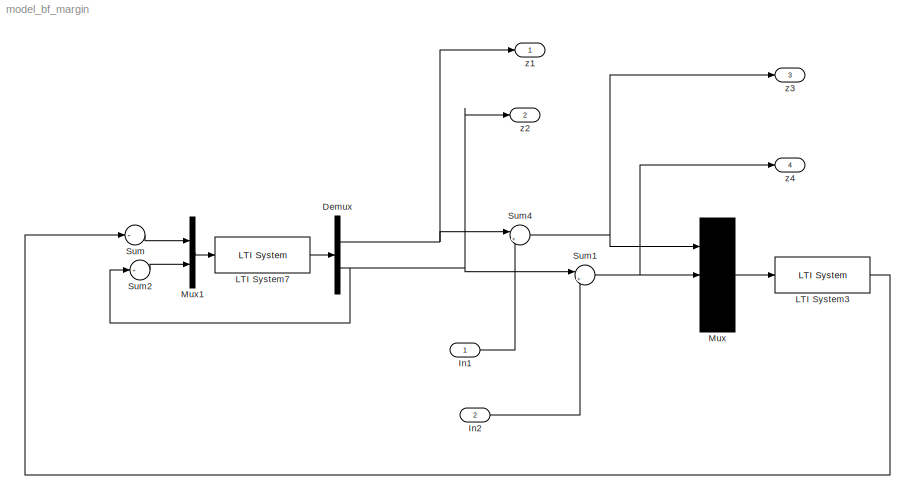
MODEL model_bf_margin
KIND model
BLOCK [Demux] Demux
  DisplayOption = bar
  Outputs = 2
  Ports = [1, 2]
BLOCK [Inport] In1
  IconDisplay = Port number
BLOCK [Inport] In2
  IconDisplay = Port number
  Port = 2
BLOCK [Reference] LTI System3  REF=cstblocks/LTI System
  FunctionWithSeparateData = off
  IC = 0
  Ports = [1, 1]
  RTWMemSecDataConstants = Inherit from model
  RTWMemSecDataInternal = Inherit from model
  RTWMemSecDataParameters = Inherit from model
  RTWMemSecFuncExecute = Inherit from model
  RTWMemSecFuncInitTerm = Inherit from model
  ShowPortLabels = FromPortIcon
  SourceBlock = cstblocks/LTI System
  SourceType = LTI Block
  SystemSampleTime = -1
  sys = sys_bo_ss
BLOCK [Reference] LTI System7  REF=cstblocks/LTI System
  FunctionWithSeparateData = off
  IC = 0
  Ports = [1, 1]
  RTWMemSecDataConstants = Inherit from model
  RTWMemSecDataInternal = Inherit from model
  RTWMemSecDataParameters = Inherit from model
  RTWMemSecFuncExecute = Inherit from model
  RTWMemSecFuncInitTerm = Inherit from model
  ShowPortLabels = FromPortIcon
  SourceBlock = cstblocks/LTI System
  SourceType = LTI Block
  SystemSampleTime = -1
  sys = K_hinf_ss
BLOCK [Mux] Mux
  Inputs = 3
  Ports = [3, 1]
BLOCK [Mux] Mux1
  Inputs = 2
  Ports = [2, 1]
BLOCK [Sum] Sum
  CollapseMode = All dimensions
  IconShape = round
  Inputs = -
  Ports = [1, 1]
BLOCK [Sum] Sum1
  IconShape = round
  Inputs = |+-
  Ports = [2, 1]
BLOCK [Sum] Sum2
  CollapseMode = All dimensions
  IconShape = round
  Inputs = -
  Ports = [1, 1]
BLOCK [Sum] Sum4
  IconShape = round
  Inputs = |+-
  Ports = [2, 1]
BLOCK [Outport] z1
  IconDisplay = Port number
BLOCK [Outport] z2
  IconDisplay = Port number
  Port = 2
BLOCK [Outport] z3
  IconDisplay = Port number
  Port = 3
BLOCK [Outport] z4
  IconDisplay = Port number
  Port = 4
NET Demux:1 -> Sum4:1, z1:1
NET Demux:2 -> Sum1:1, Sum2:1, z2:1
LINE In1:1 -> Sum4:2
LINE In2:1 -> Sum1:2
LINE LTI System3:1 -> Sum:1
LINE LTI System7:1 -> Demux:1
LINE Mux1:1 -> LTI System7:1
LINE Mux:1 -> LTI System3:1
NET Sum1:1 -> Mux:2, z4:1
LINE Sum2:1 -> Mux1:2
NET Sum4:1 -> Mux:1, z3:1
LINE Sum:1 -> Mux1:1
note: NET lines group one-source signal fan-out (src -> all destinations, sorted); 1:1 wires keep LINE
